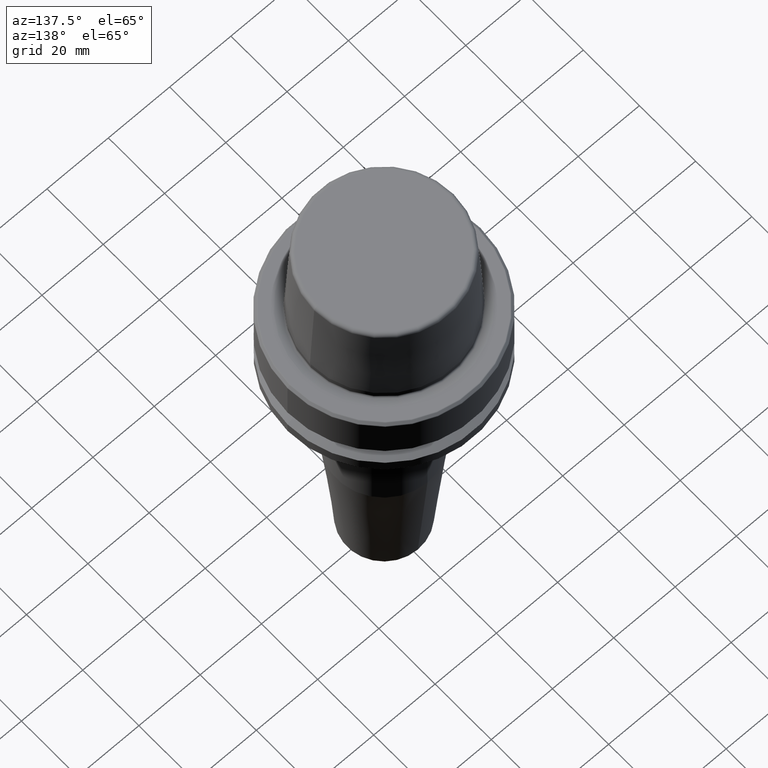
[diagram: clean part render]
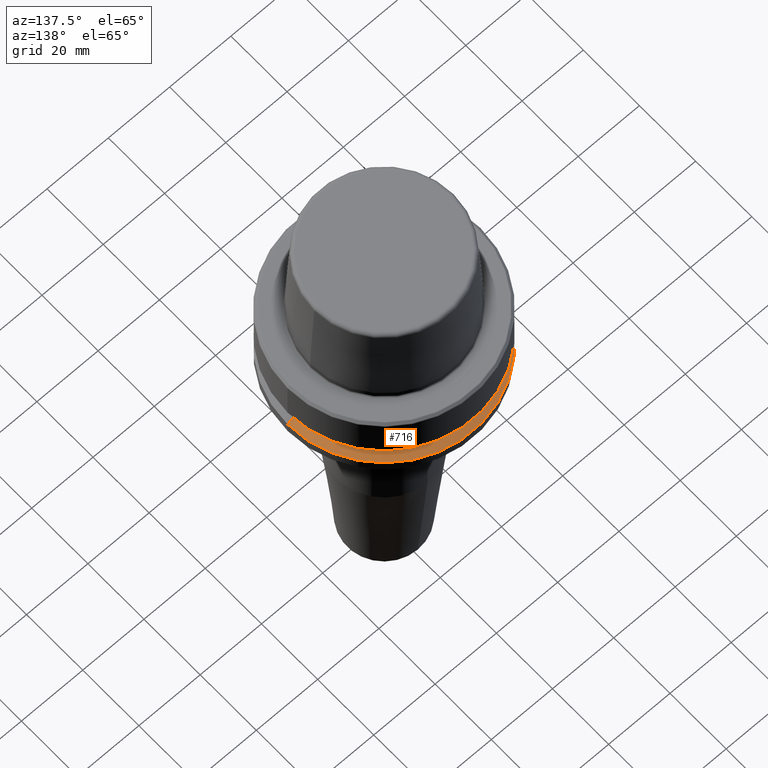
[diagram: same view with one face highlighted and labeled with its STEP entity id]
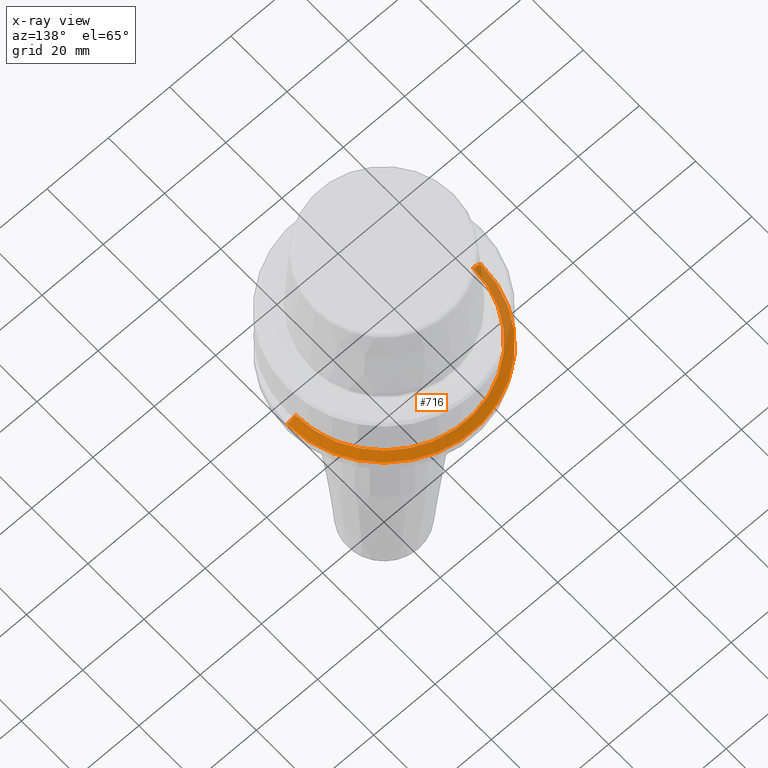
[diagram: x-ray of the same camera — body ghosted, the highlighted face saturated]
A machine part, auxiliary view. The second image highlights one B-rep face of the part: STEP entity #716.
The next image is the same camera in x-ray: the body ghosted, the highlighted face saturated — about 19% of this face is hidden behind the body in this view.
In plain terms, the highlighted conical surface has half-angle 60 deg.
Its self-contained STEP definition (entity closure, byte-faithful):
#51 = VERTEX_POINT ( 'NONE', #1053 ) ;
#69 = CONICAL_SURFACE ( 'NONE', #870, 31.50000000000000000, 1.047197551196602500 ) ;
#71 = EDGE_CURVE ( 'NONE', #453, #642, #501, .T. ) ;
#75 = CARTESIAN_POINT ( 'NONE',  ( 0.0000000000000000000, 0.0000000000000000000, -21.37749907475931700 ) ) ;
#150 = ORIENTED_EDGE ( 'NONE', *, *, #555, .F. ) ;
#280 = AXIS2_PLACEMENT_3D ( 'NONE', #479, #1062, #374 ) ;
#374 = DIRECTION ( 'NONE',  ( 1.000000000000000000, 0.0000000000000000000, 0.0000000000000000000 ) ) ;
#395 = CARTESIAN_POINT ( 'NONE',  ( -28.94089653438085100, 0.0000000000000000000, -19.90000000000001600 ) ) ;
#453 = VERTEX_POINT ( 'NONE', #511 ) ;
#461 = LINE ( 'NONE', #778, #880 ) ;
#478 = DIRECTION ( 'NONE',  ( -0.8660254037844410400, 0.0000000000000000000, -0.4999999999999958400 ) ) ;
#479 = CARTESIAN_POINT ( 'NONE',  ( 0.0000000000000000000, 0.0000000000000000000, -21.37749907475931700 ) ) ;
#501 = CIRCLE ( 'NONE', #952, 28.94089653438085100 ) ;
#510 = CIRCLE ( 'NONE', #280, 31.50000000000000000 ) ;
#511 = CARTESIAN_POINT ( 'NONE',  ( 28.94089653438085100, 3.700937523921292900E-015, -19.90000000000001600 ) ) ;
#555 = EDGE_CURVE ( 'NONE', #642, #51, #461, .T. ) ;
#564 = DIRECTION ( 'NONE',  ( 1.000000000000000000, 0.0000000000000000000, 0.0000000000000000000 ) ) ;
#614 = LINE ( 'NONE', #1204, #1039 ) ;
#642 = VERTEX_POINT ( 'NONE', #395 ) ;
#661 = DIRECTION ( 'NONE',  ( 0.8660254037844410400, 1.060575238724909700E-016, -0.4999999999999958400 ) ) ;
#686 = DIRECTION ( 'NONE',  ( -0.0000000000000000000, -0.0000000000000000000, 1.000000000000000000 ) ) ;
#692 = CARTESIAN_POINT ( 'NONE',  ( 0.0000000000000000000, 0.0000000000000000000, -19.90000000000001600 ) ) ;
#716 = ADVANCED_FACE ( 'NONE', ( #1123 ), #69, .T. ) ;
#778 = CARTESIAN_POINT ( 'NONE',  ( -31.50000000000000000, 0.0000000000000000000, -21.37749907475931700 ) ) ;
#814 = ORIENTED_EDGE ( 'NONE', *, *, #962, .T. ) ;
#847 = DIRECTION ( 'NONE',  ( 0.0000000000000000000, 0.0000000000000000000, -1.000000000000000000 ) ) ;
#870 = AXIS2_PLACEMENT_3D ( 'NONE', #75, #847, #1241 ) ;
#880 = VECTOR ( 'NONE', #478, 1000.000000000000100 ) ;
#890 = ORIENTED_EDGE ( 'NONE', *, *, #71, .F. ) ;
#915 = VERTEX_POINT ( 'NONE', #1041 ) ;
#952 = AXIS2_PLACEMENT_3D ( 'NONE', #692, #686, #564 ) ;
#962 = EDGE_CURVE ( 'NONE', #915, #51, #510, .T. ) ;
#967 = EDGE_LOOP ( 'NONE', ( #890, #1069, #814, #150 ) ) ;
#1039 = VECTOR ( 'NONE', #661, 1000.000000000000100 ) ;
#1041 = CARTESIAN_POINT ( 'NONE',  ( 31.50000000000000000, 0.0000000000000000000, -21.37749907475931700 ) ) ;
#1053 = CARTESIAN_POINT ( 'NONE',  ( -31.50000000000000000, 3.857637417314162700E-015, -21.37749907475931700 ) ) ;
#1062 = DIRECTION ( 'NONE',  ( -0.0000000000000000000, -0.0000000000000000000, 1.000000000000000000 ) ) ;
#1069 = ORIENTED_EDGE ( 'NONE', *, *, #1206, .T. ) ;
#1123 = FACE_OUTER_BOUND ( 'NONE', #967, .T. ) ;
#1204 = CARTESIAN_POINT ( 'NONE',  ( 31.50000000000000000, 3.857637417314162700E-015, -21.37749907475931700 ) ) ;
#1206 = EDGE_CURVE ( 'NONE', #453, #915, #614, .T. ) ;
#1241 = DIRECTION ( 'NONE',  ( -1.000000000000000000, 0.0000000000000000000, 0.0000000000000000000 ) ) ;